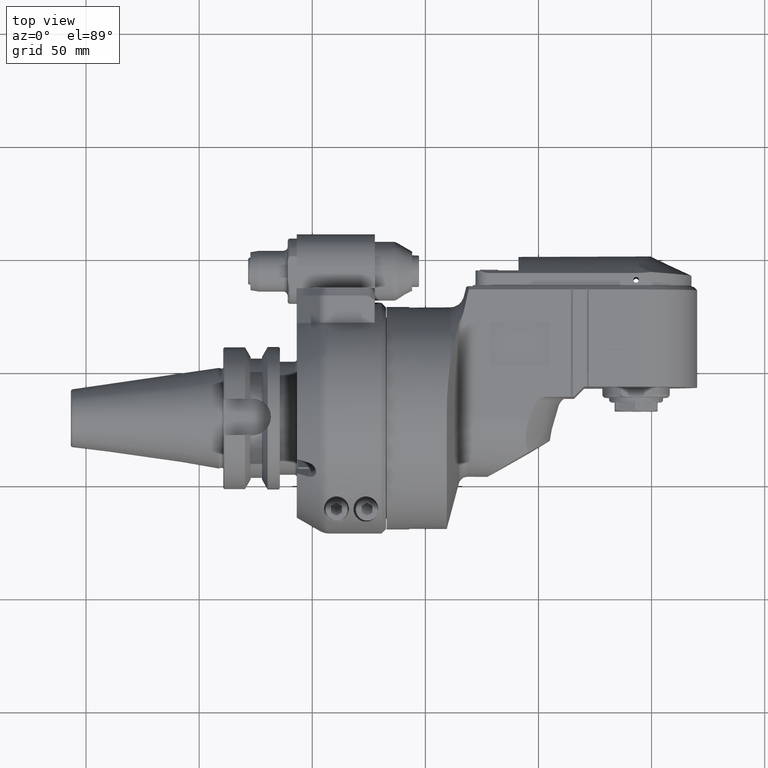
[diagram: clean part render]
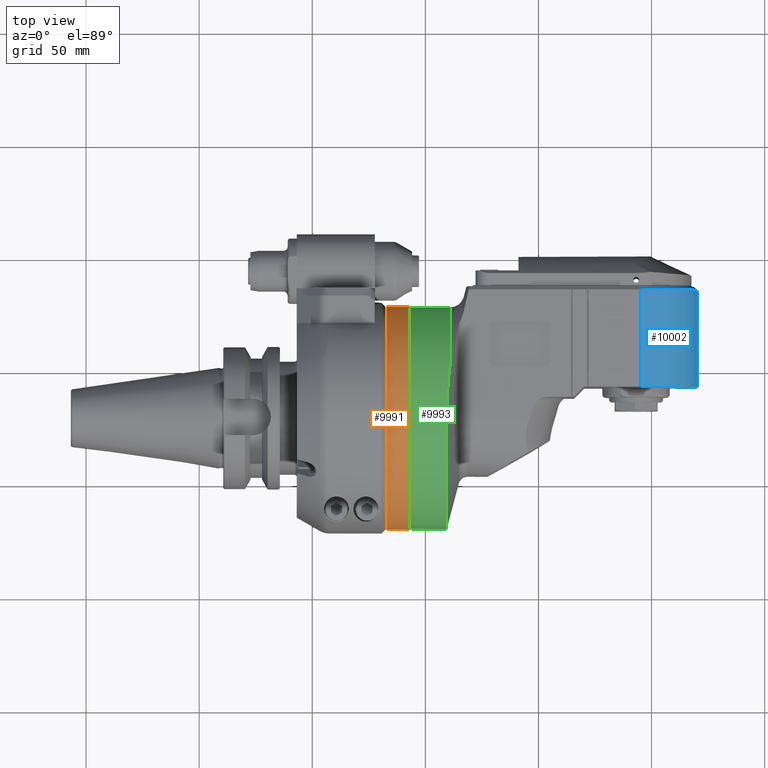
[diagram: same view with three faces highlighted in distinct colors, each labeled with its STEP entity id]
A machine part, top view with three faces highlighted in distinct colors.
Their STEP definitions:

[orange] entity #9991 — the highlighted cylindrical surface (bore or boss wall) has radius 49.2 mm, axis along (-1, -0, 0).
#324=CYLINDRICAL_SURFACE('',#10724,49.2);
#534=CIRCLE('',#10723,49.2);
#535=CIRCLE('',#10725,49.2);
#1309=FACE_OUTER_BOUND('',#1969,.T.);
#1969=EDGE_LOOP('',(#6882,#6883,#6884,#6885));
#2853=LINE('',#14983,#3568);
#3568=VECTOR('',#11944,49.2);
#4318=VERTEX_POINT('',#14979);
#4319=VERTEX_POINT('',#14982);
#5333=EDGE_CURVE('',#4318,#4318,#534,.T.);
#5334=EDGE_CURVE('',#4318,#4319,#2853,.T.);
#5335=EDGE_CURVE('',#4319,#4319,#535,.T.);
#6882=ORIENTED_EDGE('',*,*,#5333,.F.);
#6883=ORIENTED_EDGE('',*,*,#5334,.T.);
#6884=ORIENTED_EDGE('',*,*,#5335,.T.);
#6885=ORIENTED_EDGE('',*,*,#5334,.F.);
#9991=ADVANCED_FACE('',(#1309),#324,.T.);
#10723=AXIS2_PLACEMENT_3D('',#14980,#11940,#11941);
#10724=AXIS2_PLACEMENT_3D('',#14981,#11942,#11943);
#10725=AXIS2_PLACEMENT_3D('',#14984,#11945,#11946);
#11940=DIRECTION('center_axis',(-1.,0.,0.));
#11941=DIRECTION('ref_axis',(0.,1.,0.));
#11942=DIRECTION('center_axis',(-1.,0.,0.));
#11943=DIRECTION('ref_axis',(0.,1.,0.));
#11944=DIRECTION('',(1.,0.,0.));
#11945=DIRECTION('center_axis',(-1.,0.,0.));
#11946=DIRECTION('ref_axis',(0.,1.,0.));
#14979=CARTESIAN_POINT('',(-11.8,-49.2,0.));
#14980=CARTESIAN_POINT('Origin',(-11.8,0.,0.));
#14981=CARTESIAN_POINT('Origin',(233.5208261064,0.,0.));
#14982=CARTESIAN_POINT('',(-1.8,-49.2,0.));
#14983=CARTESIAN_POINT('',(233.5208261064,-49.2,6.02526225180498E-15));
#14984=CARTESIAN_POINT('Origin',(-1.8,0.,0.));

[blue] entity #10002 — the highlighted cylindrical surface (partial cylindrical patch) has radius 25 mm, axis along (-0, 1, 0).
#327=CYLINDRICAL_SURFACE('',#10758,25.);
#553=CIRCLE('',#10757,25.);
#554=CIRCLE('',#10759,25.);
#1320=FACE_OUTER_BOUND('',#1983,.T.);
#1983=EDGE_LOOP('',(#6960,#6961,#6962,#6963));
#2881=LINE('',#15160,#3596);
#2882=LINE('',#15162,#3597);
#3596=VECTOR('',#12040,43.);
#3597=VECTOR('',#12041,43.);
#4369=VERTEX_POINT('',#15151);
#4370=VERTEX_POINT('',#15155);
#4371=VERTEX_POINT('',#15159);
#4372=VERTEX_POINT('',#15161);
#5394=EDGE_CURVE('',#4369,#4370,#553,.T.);
#5396=EDGE_CURVE('',#4371,#4370,#2881,.T.);
#5397=EDGE_CURVE('',#4369,#4372,#2882,.T.);
#5398=EDGE_CURVE('',#4371,#4372,#554,.T.);
#6960=ORIENTED_EDGE('',*,*,#5396,.T.);
#6961=ORIENTED_EDGE('',*,*,#5394,.F.);
#6962=ORIENTED_EDGE('',*,*,#5397,.T.);
#6963=ORIENTED_EDGE('',*,*,#5398,.F.);
#10002=ADVANCED_FACE('',(#1320),#327,.T.);
#10757=AXIS2_PLACEMENT_3D('',#15156,#12035,#12036);
#10758=AXIS2_PLACEMENT_3D('',#15158,#12038,#12039);
#10759=AXIS2_PLACEMENT_3D('',#15163,#12042,#12043);
#12035=DIRECTION('center_axis',(0.,1.,0.));
#12036=DIRECTION('ref_axis',(0.,0.,1.));
#12038=DIRECTION('center_axis',(0.,1.,0.));
#12039=DIRECTION('ref_axis',(0.,0.,-1.));
#12040=DIRECTION('',(0.,1.,0.));
#12041=DIRECTION('',(0.,-1.,0.));
#12042=DIRECTION('center_axis',(0.,-1.,0.));
#12043=DIRECTION('ref_axis',(1.,0.,0.));
#15151=CARTESIAN_POINT('',(100.5,56.5,26.));
#15155=CARTESIAN_POINT('',(125.5,56.5,1.));
#15156=CARTESIAN_POINT('Origin',(100.5,56.5,1.));
#15158=CARTESIAN_POINT('Origin',(100.5,0.,1.));
#15159=CARTESIAN_POINT('',(125.5,13.5,1.));
#15160=CARTESIAN_POINT('',(125.5,13.5,1.));
#15161=CARTESIAN_POINT('',(100.5,13.5,26.));
#15162=CARTESIAN_POINT('',(100.5,56.5,26.));
#15163=CARTESIAN_POINT('Origin',(100.5,13.5,1.));

[green] entity #9993 — the highlighted cylindrical surface (bore or boss wall) has radius 49 mm, axis along (1, 0, -0).
#187=ELLIPSE('',#10729,50.7285328400937,49.);
#188=ELLIPSE('',#10730,50.7285328400937,49.);
#189=ELLIPSE('',#10732,50.7285328400937,49.);
#325=CYLINDRICAL_SURFACE('',#10728,49.);
#536=CIRCLE('',#10727,49.);
#537=CIRCLE('',#10731,49.);
#538=CIRCLE('',#10733,49.);
#1311=FACE_OUTER_BOUND('',#1972,.T.);
#1972=EDGE_LOOP('',(#6888,#6889,#6890,#6891,#6892,#6893,#6894,#6895));
#2854=LINE('',#14992,#3569);
#3569=VECTOR('',#11955,49.);
#4320=VERTEX_POINT('',#14986);
#4321=VERTEX_POINT('',#14989);
#4322=VERTEX_POINT('',#14990);
#4323=VERTEX_POINT('',#14993);
#4324=VERTEX_POINT('',#14995);
#4325=VERTEX_POINT('',#14997);
#5336=EDGE_CURVE('',#4320,#4320,#536,.T.);
#5337=EDGE_CURVE('',#4321,#4322,#187,.T.);
#5338=EDGE_CURVE('',#4322,#4320,#2854,.T.);
#5339=EDGE_CURVE('',#4322,#4323,#188,.T.);
#5340=EDGE_CURVE('',#4324,#4323,#537,.T.);
#5341=EDGE_CURVE('',#4325,#4324,#189,.T.);
#5342=EDGE_CURVE('',#4325,#4321,#538,.T.);
#6888=ORIENTED_EDGE('',*,*,#5337,.T.);
#6889=ORIENTED_EDGE('',*,*,#5338,.T.);
#6890=ORIENTED_EDGE('',*,*,#5336,.T.);
#6891=ORIENTED_EDGE('',*,*,#5338,.F.);
#6892=ORIENTED_EDGE('',*,*,#5339,.T.);
#6893=ORIENTED_EDGE('',*,*,#5340,.F.);
#6894=ORIENTED_EDGE('',*,*,#5341,.F.);
#6895=ORIENTED_EDGE('',*,*,#5342,.T.);
#9993=ADVANCED_FACE('',(#1311),#325,.T.);
#10727=AXIS2_PLACEMENT_3D('',#14987,#11949,#11950);
#10728=AXIS2_PLACEMENT_3D('',#14988,#11951,#11952);
#10729=AXIS2_PLACEMENT_3D('',#14991,#11953,#11954);
#10730=AXIS2_PLACEMENT_3D('',#14994,#11956,#11957);
#10731=AXIS2_PLACEMENT_3D('',#14996,#11958,#11959);
#10732=AXIS2_PLACEMENT_3D('',#14998,#11960,#11961);
#10733=AXIS2_PLACEMENT_3D('',#14999,#11962,#11963);
#11949=DIRECTION('center_axis',(1.,0.,0.));
#11950=DIRECTION('ref_axis',(0.,0.0871557427476639,-0.996194698091745));
#11951=DIRECTION('center_axis',(1.,0.,0.));
#11952=DIRECTION('ref_axis',(0.,-0.0871557427476639,0.996194698091745));
#11953=DIRECTION('center_axis',(-0.965925826289076,0.,0.258819045102493));
#11954=DIRECTION('ref_axis',(0.258819045102493,-2.18855733148206E-17,0.965925826289076));
#11955=DIRECTION('',(-1.,0.,0.));
#11956=DIRECTION('center_axis',(-0.965925826289076,0.,0.258819045102493));
#11957=DIRECTION('ref_axis',(0.258819045102493,-2.18855733148206E-17,0.965925826289076));
#11958=DIRECTION('center_axis',(1.,0.,0.));
#11959=DIRECTION('ref_axis',(0.,-3.889858956483E-14,1.));
#11960=DIRECTION('center_axis',(0.965925826289076,0.,0.258819045102493));
#11961=DIRECTION('ref_axis',(-0.258819045102493,-2.18855733148206E-17,0.965925826289076));
#11962=DIRECTION('center_axis',(-1.,0.,0.));
#11963=DIRECTION('ref_axis',(0.,0.482327426010098,0.875991012578596));
#14986=CARTESIAN_POINT('',(-1.8,4.270631394635,-48.8135402065));
#14987=CARTESIAN_POINT('Origin',(-1.8,0.,0.));
#14988=CARTESIAN_POINT('Origin',(-7.9,0.,0.));
#14989=CARTESIAN_POINT('',(16.39603811104,23.6340438745,-42.92355961635));
#14990=CARTESIAN_POINT('',(14.8178225684795,4.27063139463554,-48.8135402064955));
#14991=CARTESIAN_POINT('Origin',(27.8973712465126,0.,0.));
#14992=CARTESIAN_POINT('',(-7.9,4.27063139463554,-48.8135402064955));
#14993=CARTESIAN_POINT('',(14.76786081739,-2.09277040373E-12,-49.));
#14994=CARTESIAN_POINT('Origin',(27.8973712465126,0.,0.));
#14995=CARTESIAN_POINT('',(14.76786081739,-1.906030888676E-12,49.));
#14996=CARTESIAN_POINT('Origin',(14.76786081739,0.,0.));
#14997=CARTESIAN_POINT('',(16.39603811104,23.6340438745,42.92355961635));
#14998=CARTESIAN_POINT('Origin',(27.8973712465092,0.,0.));
#14999=CARTESIAN_POINT('Origin',(16.39603811104,0.,0.));